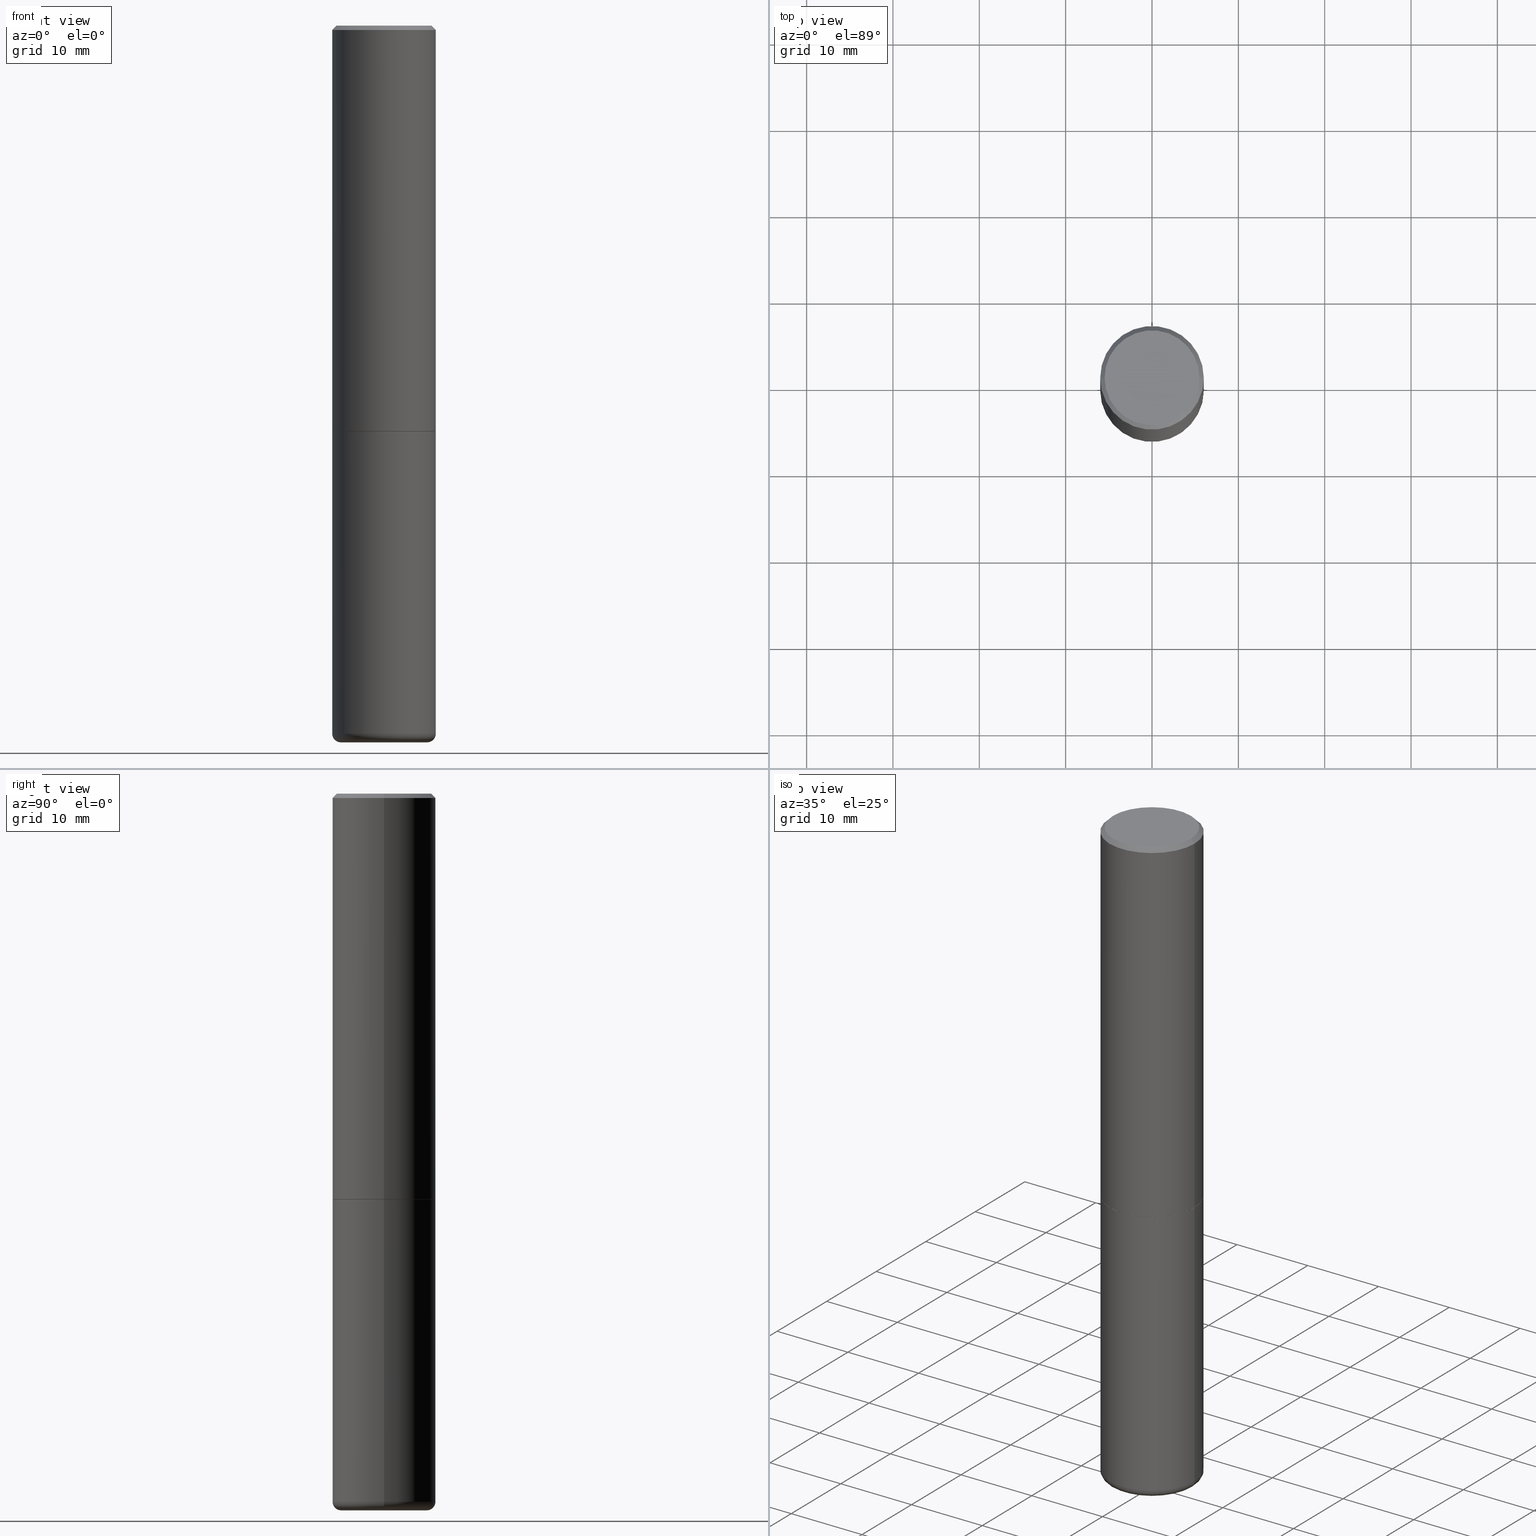
[diagram: canonical four-view strip — front | top / right | iso, engineering-drawing reading convention]
A machine part, canonical four-view strip (front | top / right | iso — engineering-drawing reading convention). The complete STEP part file that produces these views, byte-faithful:
ISO-10303-21;
HEADER;
FILE_DESCRIPTION (( 'STEP AP203' ),
    '1' );
FILE_NAME ('74452.STEP',
    '2024-03-06T15:15:29',
    ( '' ),
    ( '' ),
    'SwSTEP 2.0',
    'SolidWorks 2023',
    '' );
FILE_SCHEMA (( 'CONFIG_CONTROL_DESIGN' ));
ENDSEC;

DATA;
#1 = EDGE_CURVE ( 'NONE', #296, #202, #351, .T. ) ;
#2 = DATE_AND_TIME ( #129, #184 ) ;
#3 = DIRECTION ( 'NONE',  ( -2.445468806185136597E-29, 3.491481338843145583E-15, 1.000000000000000000 ) ) ;
#4 = DIRECTION ( 'NONE',  ( 1.000000000000000000, -6.982962677686266711E-15, 0.000000000000000000 ) ) ;
#5 = DIRECTION ( 'NONE',  ( 1.000000000000000000, -6.982962677686264344E-15, 0.000000000000000000 ) ) ;
#6 = PERSON_AND_ORGANIZATION ( #109, #352 ) ;
#7 = CARTESIAN_POINT ( 'NONE',  ( 7.894706947007477118E-29, -1.127154920618732880E-14, -3.228299999999999947 ) ) ;
#8 = AXIS2_PLACEMENT_3D ( 'NONE', #389, #161, #349 ) ;
#9 = CARTESIAN_POINT ( 'NONE',  ( 0.2362000000000002153, -8.106521372526011094E-15, -1.849400000000000155 ) ) ;
#10 = CARTESIAN_POINT ( 'NONE',  ( 0.2161999999999996980, -1.586759460484350410E-15, 2.475737244258346579E-16 ) ) ;
#11 = VERTEX_POINT ( 'NONE', #233 ) ;
#12 = ORIENTED_EDGE ( 'NONE', *, *, #1, .F. ) ;
#13 = CARTESIAN_POINT ( 'NONE',  ( -0.2362000000000002431, -1.585185665551328595E-15, -1.849400000000000155 ) ) ;
#14 = CARTESIAN_POINT ( 'NONE',  ( 4.525095478964977394E-29, -6.460637069395357576E-15, -1.850400000000000267 ) ) ;
#15 = DIRECTION ( 'NONE',  ( 7.105427357601001859E-15, 1.000000000000000000, -3.491481338843145583E-15 ) ) ;
#16 = DIRECTION ( 'NONE',  ( -6.982962677686266711E-15, -1.000000000000000000, 3.491481338843145583E-15 ) ) ;
#17 = LOCAL_TIME ( 10, 15, 29.00000000000000000, #318 ) ;
#18 = LINE ( 'NONE', #146, #416 ) ;
#19 = AXIS2_PLACEMENT_3D ( 'NONE', #323, #37, #294 ) ;
#20 = ORIENTED_EDGE ( 'NONE', *, *, #59, .T. ) ;
#21 = LINE ( 'NONE', #105, #282 ) ;
#22 = CARTESIAN_POINT ( 'NONE',  ( 7.894706947007477118E-29, -1.127154920618732880E-14, -3.228299999999999947 ) ) ;
#23 = ORIENTED_EDGE ( 'NONE', *, *, #1, .T. ) ;
#24 = ORIENTED_EDGE ( 'NONE', *, *, #396, .F. ) ;
#25 = ORIENTED_EDGE ( 'NONE', *, *, #208, .F. ) ;
#26 = ORIENTED_EDGE ( 'NONE', *, *, #42, .T. ) ;
#27 = ADVANCED_FACE ( 'NONE', ( #43 ), #238, .T. ) ;
#28 = LINE ( 'NONE', #155, #354 ) ;
#29 = AXIS2_PLACEMENT_3D ( 'NONE', #166, #328, #264 ) ;
#30 = APPROVAL_STATUS ( 'not_yet_approved' ) ;
#31 = DATE_AND_TIME ( #288, #362 ) ;
#32 = PRODUCT_RELATED_PRODUCT_CATEGORY ( 'detail', '', ( #251 ) ) ;
#33 = PERSON_AND_ORGANIZATION_ROLE ( 'creator' ) ;
#34 = APPLICATION_PROTOCOL_DEFINITION ( 'international standard', 'config_control_design', 1994, #217 ) ;
#35 = ADVANCED_BREP_SHAPE_REPRESENTATION ( '74452', ( #132, #410, #373 ), #157 ) ;
#36 = AXIS2_PLACEMENT_3D ( 'NONE', #40, #16, #306 ) ;
#37 = DIRECTION ( 'NONE',  ( -2.445468806185136597E-29, 3.491481338843145583E-15, 1.000000000000000000 ) ) ;
#38 = DIRECTION ( 'NONE',  ( -1.000000000000000000, 6.982962677686265922E-15, -4.876176775795935793E-29 ) ) ;
#39 = EDGE_LOOP ( 'NONE', ( #12, #78, #401, #326 ) ) ;
#40 = CARTESIAN_POINT ( 'NONE',  ( 0.1968000000000000027, -1.264579626115598374E-14, -3.228299999999999947 ) ) ;
#41 = CARTESIAN_POINT ( 'NONE',  ( 7.894706947007477118E-29, -1.127154920618732880E-14, -3.228299999999999947 ) ) ;
#42 = EDGE_CURVE ( 'NONE', #333, #276, #176, .T. ) ;
#43 = FACE_OUTER_BOUND ( 'NONE', #262, .T. ) ;
#44 = DIRECTION ( 'NONE',  ( 1.000000000000000000, -6.982962677686265922E-15, 4.876176775795935793E-29 ) ) ;
#45 = CARTESIAN_POINT ( 'NONE',  ( 0.000000000000000000, 0.000000000000000000, 0.000000000000000000 ) ) ;
#46 = CC_DESIGN_PERSON_AND_ORGANIZATION_ASSIGNMENT ( #64, #190, ( #251 ) ) ;
#47 = CARTESIAN_POINT ( 'NONE',  ( 4.525095478964977394E-29, -6.460637069395357576E-15, -1.850400000000000267 ) ) ;
#48 = CIRCLE ( 'NONE', #193, 0.2361999999999999933 ) ;
#49 = DIRECTION ( 'NONE',  ( -1.000000000000000000, 6.982962677686266711E-15, 0.000000000000000000 ) ) ;
#50 = AXIS2_PLACEMENT_3D ( 'NONE', #231, #361, #79 ) ;
#51 = ORIENTED_EDGE ( 'NONE', *, *, #97, .T. ) ;
#52 = FACE_OUTER_BOUND ( 'NONE', #299, .T. ) ;
#53 = DIRECTION ( 'NONE',  ( -2.445468806185136597E-29, 3.491481338843145583E-15, 1.000000000000000000 ) ) ;
#54 = VERTEX_POINT ( 'NONE', #199 ) ;
#55 = ADVANCED_FACE ( 'NONE', ( #332 ), #408, .T. ) ;
#56 = ORIENTED_EDGE ( 'NONE', *, *, #158, .T. ) ;
#57 = CIRCLE ( 'NONE', #36, 0.03940000000000005997 ) ;
#58 = VECTOR ( 'NONE', #340, 39.37007874015748143 ) ;
#59 = EDGE_CURVE ( 'NONE', #170, #118, #371, .T. ) ;
#60 = CC_DESIGN_APPROVAL ( #355, ( #239 ) ) ;
#61 = ADVANCED_FACE ( 'NONE', ( #205 ), #336, .F. ) ;
#62 = PERSON_AND_ORGANIZATION_ROLE ( 'classification_officer' ) ;
#63 = CARTESIAN_POINT ( 'NONE',  ( 4.890937612370285420E-31, -6.982962677686308865E-17, -0.02000000000000005246 ) ) ;
#64 = PERSON_AND_ORGANIZATION ( #109, #352 ) ;
#65 = APPROVAL_STATUS ( 'not_yet_approved' ) ;
#66 = EDGE_CURVE ( 'NONE', #181, #333, #117, .T. ) ;
#67 = CARTESIAN_POINT ( 'NONE',  ( -0.2351999999999999924, -4.784142100539378999E-15, -1.850400000000000267 ) ) ;
#68 = CARTESIAN_POINT ( 'NONE',  ( -0.2351999999999999924, -4.789440554887602190E-15, -1.850400000000000267 ) ) ;
#69 = AXIS2_PLACEMENT_3D ( 'NONE', #330, #70, #203 ) ;
#70 = DIRECTION ( 'NONE',  ( -2.445468806185136597E-29, 3.491481338843145583E-15, 1.000000000000000000 ) ) ;
#71 = AXIS2_PLACEMENT_3D ( 'NONE', #41, #198, #106 ) ;
#72 = DIRECTION ( 'NONE',  ( -2.445468806185136597E-29, 3.491481338843145583E-15, 1.000000000000000000 ) ) ;
#73 = DIRECTION ( 'NONE',  ( -1.000000000000000000, 6.982962677686265922E-15, -4.876176775795935793E-29 ) ) ;
#74 = DIRECTION ( 'NONE',  ( 1.000000000000000000, -6.982962677686266711E-15, 4.876176775795935793E-29 ) ) ;
#75 = EDGE_CURVE ( 'NONE', #276, #333, #364, .T. ) ;
#76 = APPROVAL ( #30, 'UNSPECIFIED' ) ;
#77 = VERTEX_POINT ( 'NONE', #156 ) ;
#78 = ORIENTED_EDGE ( 'NONE', *, *, #89, .T. ) ;
#79 = DIRECTION ( 'NONE',  ( 1.000000000000000000, -6.982962677686270655E-15, 4.883557194083114583E-29 ) ) ;
#80 = FACE_OUTER_BOUND ( 'NONE', #113, .T. ) ;
#81 = DIRECTION ( 'NONE',  ( 0.7071067811865469066, -7.319954787623254468E-15, -0.7071067811865481278 ) ) ;
#82 = ORIENTED_EDGE ( 'NONE', *, *, #104, .F. ) ;
#83 = CONICAL_SURFACE ( 'NONE', #221, 0.2351999999999999924, 0.7853981633975165577 ) ;
#84 = DIRECTION ( 'NONE',  ( 1.000000000000000000, -6.982962677686266711E-15, 0.000000000000000000 ) ) ;
#85 = AXIS2_PLACEMENT_3D ( 'NONE', #107, #211, #152 ) ;
#86 = ORIENTED_EDGE ( 'NONE', *, *, #195, .T. ) ;
#87 = ORIENTED_EDGE ( 'NONE', *, *, #246, .T. ) ;
#88 = ORIENTED_EDGE ( 'NONE', *, *, #75, .F. ) ;
#89 = EDGE_CURVE ( 'NONE', #296, #341, #98, .T. ) ;
#90 = AXIS2_PLACEMENT_3D ( 'NONE', #260, #272, #143 ) ;
#91 = PRODUCT_DEFINITION_SHAPE ( 'NONE', 'NONE',  #239 ) ;
#92 = CLOSED_SHELL ( 'NONE', ( #388, #127, #138, #165, #55, #360, #125, #61 ) ) ;
#93 = EDGE_CURVE ( 'NONE', #276, #118, #387, .T. ) ;
#94 = PERSON_AND_ORGANIZATION ( #109, #352 ) ;
#95 = VECTOR ( 'NONE', #228, 39.37007874015748143 ) ;
#96 = CONICAL_SURFACE ( 'NONE', #90, 0.2361999999999999655, 0.7853981633974473908 ) ;
#97 = EDGE_CURVE ( 'NONE', #141, #170, #281, .T. ) ;
#98 = CIRCLE ( 'NONE', #126, 0.1968000000000000027 ) ;
#99 = CIRCLE ( 'NONE', #69, 0.2161999999999996980 ) ;
#100 = CALENDAR_DATE ( 2024, 6, 3 ) ;
#101 = ORIENTED_EDGE ( 'NONE', *, *, #97, .F. ) ;
#102 = CARTESIAN_POINT ( 'NONE',  ( 0.1968000000000000027, -1.278336062590640454E-14, -3.267700000000000049 ) ) ;
#103 = CYLINDRICAL_SURFACE ( 'NONE', #380, 0.2362000000000000766 ) ;
#104 = EDGE_CURVE ( 'NONE', #54, #118, #160, .T. ) ;
#105 = CARTESIAN_POINT ( 'NONE',  ( 0.2351999999999999924, -8.103029891187166509E-15, -1.850400000000000267 ) ) ;
#106 = DIRECTION ( 'NONE',  ( 1.000000000000000000, -6.982962677686265133E-15, 0.000000000000000000 ) ) ;
#107 = CARTESIAN_POINT ( 'NONE',  ( 4.522650010158792351E-29, -6.457145588056513780E-15, -1.849400000000000155 ) ) ;
#108 = ADVANCED_FACE ( 'NONE', ( #134 ), #357, .T. ) ;
#109 = PERSON ( 'UNSPECIFIED', 'UNSPECIFIED', 'UNSPECIFIED', ('UNSPECIFIED'), ('UNSPECIFIED'), ('UNSPECIFIED') ) ;
#110 = CC_DESIGN_DATE_AND_TIME_ASSIGNMENT ( #2, #284, ( #344 ) ) ;
#111 = LINE ( 'NONE', #235, #128 ) ;
#112 = EDGE_LOOP ( 'NONE', ( #243, #26, #278, #82 ) ) ;
#113 = EDGE_LOOP ( 'NONE', ( #167, #144 ) ) ;
#114 = FACE_OUTER_BOUND ( 'NONE', #230, .T. ) ;
#115 = DIRECTION ( 'NONE',  ( -1.000000000000000000, 7.105427357601014480E-15, 0.000000000000000000 ) ) ;
#116 = FACE_OUTER_BOUND ( 'NONE', #407, .T. ) ;
#117 = LINE ( 'NONE', #68, #58 ) ;
#118 = VERTEX_POINT ( 'NONE', #395 ) ;
#119 = APPROVAL_PERSON_ORGANIZATION ( #189, #180, #290 ) ;
#120 = CARTESIAN_POINT ( 'NONE',  ( 7.991058417971171713E-29, -1.140911357093774644E-14, -3.267700000000000049 ) ) ;
#121 = ORIENTED_EDGE ( 'NONE', *, *, #379, .T. ) ;
#122 = CC_DESIGN_PERSON_AND_ORGANIZATION_ASSIGNMENT ( #250, #287, ( #384 ) ) ;
#123 = DIRECTION ( 'NONE',  ( -2.445468806185136597E-29, 3.491481338843145583E-15, 1.000000000000000000 ) ) ;
#124 = EDGE_CURVE ( 'NONE', #369, #77, #248, .T. ) ;
#125 = ADVANCED_FACE ( 'NONE', ( #80 ), #363, .F. ) ;
#126 = AXIS2_PLACEMENT_3D ( 'NONE', #120, #123, #315 ) ;
#127 = ADVANCED_FACE ( 'NONE', ( #116 ), #103, .T. ) ;
#128 = VECTOR ( 'NONE', #206, 39.37007874015748143 ) ;
#129 = CALENDAR_DATE ( 2024, 6, 3 ) ;
#130 = AXIS2_PLACEMENT_3D ( 'NONE', #204, #242, #49 ) ;
#131 = PERSON_AND_ORGANIZATION_ROLE ( 'creator' ) ;
#132 = MANIFOLD_SOLID_BREP ( 'Body-Move/Copy2[1]', #375 ) ;
#133 = CALENDAR_DATE ( 2024, 6, 3 ) ;
#134 = FACE_OUTER_BOUND ( 'NONE', #368, .T. ) ;
#135 = CIRCLE ( 'NONE', #277, 0.1968000000000000027 ) ;
#136 = VECTOR ( 'NONE', #418, 39.37007874015748143 ) ;
#137 = DIRECTION ( 'NONE',  ( 1.000000000000000000, -6.982962677686270655E-15, 4.883557194083114583E-29 ) ) ;
#138 = ADVANCED_FACE ( 'NONE', ( #114 ), #412, .T. ) ;
#139 = PLANE ( 'NONE',  #385 ) ;
#140 = ORIENTED_EDGE ( 'NONE', *, *, #59, .F. ) ;
#141 = VERTEX_POINT ( 'NONE', #302 ) ;
#142 = DIRECTION ( 'NONE',  ( -2.445468806185136597E-29, 3.491481338843145583E-15, 1.000000000000000000 ) ) ;
#143 = DIRECTION ( 'NONE',  ( -1.000000000000000000, 6.982962677686266711E-15, 0.000000000000000000 ) ) ;
#144 = ORIENTED_EDGE ( 'NONE', *, *, #216, .F. ) ;
#145 = DIRECTION ( 'NONE',  ( -2.445468806185136597E-29, 3.491481338843145583E-15, 1.000000000000000000 ) ) ;
#146 = CARTESIAN_POINT ( 'NONE',  ( -0.2361999999999999655, 1.579546157692632833E-15, -0.02000000000000005246 ) ) ;
#147 = DIRECTION ( 'NONE',  ( -2.445468806185136597E-29, 3.491481338843145583E-15, 1.000000000000000000 ) ) ;
#148 = DIRECTION ( 'NONE',  ( -2.445468806185136597E-29, 3.491481338843145583E-15, 1.000000000000000000 ) ) ;
#149 = ADVANCED_FACE ( 'NONE', ( #335 ), #286, .T. ) ;
#150 = DIRECTION ( 'NONE',  ( 2.438088387897960049E-29, -3.491481338843145188E-15, -1.000000000000000000 ) ) ;
#151 = ORIENTED_EDGE ( 'NONE', *, *, #75, .T. ) ;
#152 = DIRECTION ( 'NONE',  ( 1.000000000000000000, -6.982962677686266711E-15, 0.000000000000000000 ) ) ;
#153 = ORIENTED_EDGE ( 'NONE', *, *, #216, .T. ) ;
#154 = ORIENTED_EDGE ( 'NONE', *, *, #396, .T. ) ;
#155 = CARTESIAN_POINT ( 'NONE',  ( -0.2361999999999999933, 1.678301941865356591E-15, -1.161852468318208757E-29 ) ) ;
#156 = CARTESIAN_POINT ( 'NONE',  ( 0.2361999999999999933, -8.110012853864854101E-15, -1.850400000000000267 ) ) ;
#157 =( GEOMETRIC_REPRESENTATION_CONTEXT ( 3 ) GLOBAL_UNCERTAINTY_ASSIGNED_CONTEXT ( ( #350 ) ) GLOBAL_UNIT_ASSIGNED_CONTEXT ( ( #241, #219, #343 ) ) REPRESENTATION_CONTEXT ( 'NONE', 'WORKASPACE' ) );
#158 = EDGE_CURVE ( 'NONE', #11, #202, #201, .T. ) ;
#159 = APPROVAL_DATE_TIME ( #322, #180 ) ;
#160 = CIRCLE ( 'NONE', #186, 0.2361999999999999655 ) ;
#161 = DIRECTION ( 'NONE',  ( -2.445468806185136597E-29, 3.491481338843145583E-15, 1.000000000000000000 ) ) ;
#162 = COORDINATED_UNIVERSAL_TIME_OFFSET ( 5, 0, .BEHIND. ) ;
#163 = DESIGN_CONTEXT ( 'detailed design', #217, 'design' ) ;
#164 = DATE_AND_TIME ( #100, #337 ) ;
#165 = ADVANCED_FACE ( 'NONE', ( #358 ), #96, .T. ) ;
#166 = CARTESIAN_POINT ( 'NONE',  ( 4.525095478964977394E-29, -6.460637069395357576E-15, -1.850400000000000267 ) ) ;
#167 = ORIENTED_EDGE ( 'NONE', *, *, #379, .F. ) ;
#168 = CARTESIAN_POINT ( 'NONE',  ( 4.525095478964977394E-29, -6.460637069395357576E-15, -1.850400000000000267 ) ) ;
#169 = DIRECTION ( 'NONE',  ( 1.000000000000000000, -6.982962677686269077E-15, 0.000000000000000000 ) ) ;
#170 = VERTEX_POINT ( 'NONE', #10 ) ;
#171 = FACE_OUTER_BOUND ( 'NONE', #393, .T. ) ;
#172 = DIRECTION ( 'NONE',  ( 1.000000000000000000, -6.982962677686265133E-15, 0.000000000000000000 ) ) ;
#173 = EDGE_LOOP ( 'NONE', ( #275, #23, #310, #329 ) ) ;
#174 = AXIS2_PLACEMENT_3D ( 'NONE', #261, #331, #169 ) ;
#175 = CARTESIAN_POINT ( 'NONE',  ( 0.2361999999999999933, -1.649375784469496131E-15, 1.151752954443000088E-29 ) ) ;
#176 = CIRCLE ( 'NONE', #85, 0.2362000000000002153 ) ;
#177 = DIRECTION ( 'NONE',  ( -2.445468806185136597E-29, 3.491481338843145583E-15, 1.000000000000000000 ) ) ;
#178 = CARTESIAN_POINT ( 'NONE',  ( 1.509716530915768548E-15, 0.2161999999999996980, -6.310714032449751543E-16 ) ) ;
#179 = ORIENTED_EDGE ( 'NONE', *, *, #254, .T. ) ;
#180 = APPROVAL ( #224, 'UNSPECIFIED' ) ;
#181 = VERTEX_POINT ( 'NONE', #67 ) ;
#182 = ADVANCED_FACE ( 'NONE', ( #52 ), #139, .F. ) ;
#183 = ORIENTED_EDGE ( 'NONE', *, *, #192, .F. ) ;
#184 = LOCAL_TIME ( 10, 15, 29.00000000000000000, #162 ) ;
#185 = APPROVAL_PERSON_ORGANIZATION ( #6, #355, #319 ) ;
#186 = AXIS2_PLACEMENT_3D ( 'NONE', #63, #3, #4 ) ;
#187 = PERSON_AND_ORGANIZATION ( #109, #352 ) ;
#188 = APPLICATION_CONTEXT ( 'configuration controlled 3d designs of mechanical parts and assemblies' ) ;
#189 = PERSON_AND_ORGANIZATION ( #109, #352 ) ;
#190 = PERSON_AND_ORGANIZATION_ROLE ( 'design_owner' ) ;
#191 = LOCAL_TIME ( 10, 15, 29.00000000000000000, #348 ) ;
#192 = EDGE_CURVE ( 'NONE', #77, #369, #48, .T. ) ;
#193 = AXIS2_PLACEMENT_3D ( 'NONE', #298, #405, #402 ) ;
#194 = SECURITY_CLASSIFICATION_LEVEL ( 'unclassified' ) ;
#195 = EDGE_CURVE ( 'NONE', #202, #11, #253, .T. ) ;
#196 = DIRECTION ( 'NONE',  ( -2.445468806185136597E-29, 3.491481338843145583E-15, 1.000000000000000000 ) ) ;
#197 = CALENDAR_DATE ( 2024, 6, 3 ) ;
#198 = DIRECTION ( 'NONE',  ( -2.445468806185136597E-29, 3.491481338843145583E-15, 1.000000000000000000 ) ) ;
#199 = CARTESIAN_POINT ( 'NONE',  ( -0.2361999999999999655, 1.579546157692632833E-15, -0.02000000000000005246 ) ) ;
#200 = CC_DESIGN_APPROVAL ( #76, ( #344 ) ) ;
#201 = CIRCLE ( 'NONE', #305, 0.2361999999999999933 ) ;
#202 = VERTEX_POINT ( 'NONE', #232 ) ;
#203 = DIRECTION ( 'NONE',  ( 1.000000000000000000, -6.982962677686266711E-15, 4.881916136609868741E-29 ) ) ;
#204 = CARTESIAN_POINT ( 'NONE',  ( 4.890937612370285420E-31, -6.982962677686308865E-17, -0.02000000000000005246 ) ) ;
#205 = FACE_OUTER_BOUND ( 'NONE', #265, .T. ) ;
#206 = DIRECTION ( 'NONE',  ( -2.445468806185136877E-29, 3.491481338843145188E-15, 1.000000000000000000 ) ) ;
#207 = DIRECTION ( 'NONE',  ( 2.438088387897960049E-29, -3.491481338843145188E-15, -1.000000000000000000 ) ) ;
#208 = EDGE_CURVE ( 'NONE', #118, #54, #392, .T. ) ;
#209 = ORIENTED_EDGE ( 'NONE', *, *, #295, .F. ) ;
#210 = CARTESIAN_POINT ( 'NONE',  ( 4.525095478964977394E-29, -6.460637069395357576E-15, -1.850400000000000267 ) ) ;
#211 = DIRECTION ( 'NONE',  ( -2.445468806185136597E-29, 3.491481338843145583E-15, 1.000000000000000000 ) ) ;
#212 = ADVANCED_FACE ( 'NONE', ( #292 ), #237, .T. ) ;
#213 = DIRECTION ( 'NONE',  ( -2.438088387897960049E-29, 3.491481338843145188E-15, 1.000000000000000000 ) ) ;
#214 = CARTESIAN_POINT ( 'NONE',  ( 7.991058417971171713E-29, -1.140911357093774644E-14, -3.267700000000000049 ) ) ;
#215 = EDGE_LOOP ( 'NONE', ( #234, #86, #154, #236 ) ) ;
#216 = EDGE_CURVE ( 'NONE', #181, #398, #249, .T. ) ;
#217 = APPLICATION_CONTEXT ( 'configuration controlled 3d designs of mechanical parts and assemblies' ) ;
#218 = EDGE_LOOP ( 'NONE', ( #121, #342, #88, #403 ) ) ;
#219 =( NAMED_UNIT ( * ) PLANE_ANGLE_UNIT ( ) SI_UNIT ( $, .RADIAN. ) );
#220 = CC_DESIGN_DATE_AND_TIME_ASSIGNMENT ( #164, #317, ( #239 ) ) ;
#221 = AXIS2_PLACEMENT_3D ( 'NONE', #168, #145, #269 ) ;
#222 = MECHANICAL_CONTEXT ( 'NONE', #188, 'mechanical' ) ;
#223 = DIRECTION ( 'NONE',  ( 0.000000000000000000, 0.000000000000000000, 1.000000000000000000 ) ) ;
#224 = APPROVAL_STATUS ( 'not_yet_approved' ) ;
#225 = AXIS2_PLACEMENT_3D ( 'NONE', #406, #15, #115 ) ;
#226 = AXIS2_PLACEMENT_3D ( 'NONE', #7, #177, #137 ) ;
#227 = CARTESIAN_POINT ( 'NONE',  ( 0.000000000000000000, 0.000000000000000000, 0.000000000000000000 ) ) ;
#228 = DIRECTION ( 'NONE',  ( -2.445468806185136877E-29, 3.491481338843145188E-15, 1.000000000000000000 ) ) ;
#229 = DIRECTION ( 'NONE',  ( -2.445468806185136597E-29, 3.491481338843145583E-15, 1.000000000000000000 ) ) ;
#230 = EDGE_LOOP ( 'NONE', ( #209, #20, #312, #409 ) ) ;
#231 = CARTESIAN_POINT ( 'NONE',  ( 7.894706947007477118E-29, -1.127154920618732880E-14, -3.228299999999999947 ) ) ;
#232 = CARTESIAN_POINT ( 'NONE',  ( -0.2362000000000000210, -9.593247264321970832E-15, -3.228299999999999947 ) ) ;
#233 = CARTESIAN_POINT ( 'NONE',  ( 0.2362000000000000210, -1.292092499065682375E-14, -3.228299999999999947 ) ) ;
#234 = ORIENTED_EDGE ( 'NONE', *, *, #268, .F. ) ;
#235 = CARTESIAN_POINT ( 'NONE',  ( -0.2362000000000000766, 1.678301941865357183E-15, -1.161852468318209177E-29 ) ) ;
#236 = ORIENTED_EDGE ( 'NONE', *, *, #124, .F. ) ;
#237 = CYLINDRICAL_SURFACE ( 'NONE', #19, 0.2361999999999999933 ) ;
#238 = PLANE ( 'NONE',  #324 ) ;
#239 = PRODUCT_DEFINITION ( 'UNKNOWN', '', #384, #163 ) ;
#240 = ORIENTED_EDGE ( 'NONE', *, *, #42, .F. ) ;
#241 =( CONVERSION_BASED_UNIT ( 'INCH', #247 ) LENGTH_UNIT ( ) NAMED_UNIT ( #347 ) );
#242 = DIRECTION ( 'NONE',  ( 2.445468806185136597E-29, -3.491481338843145583E-15, -1.000000000000000000 ) ) ;
#243 = ORIENTED_EDGE ( 'NONE', *, *, #246, .F. ) ;
#244 = ORIENTED_EDGE ( 'NONE', *, *, #295, .T. ) ;
#245 = ORIENTED_EDGE ( 'NONE', *, *, #192, .T. ) ;
#246 = EDGE_CURVE ( 'NONE', #333, #54, #111, .T. ) ;
#247 = LENGTH_MEASURE_WITH_UNIT ( LENGTH_MEASURE( 0.02539999999999999897 ), #381 );
#248 = CIRCLE ( 'NONE', #174, 0.2361999999999999933 ) ;
#249 = CIRCLE ( 'NONE', #29, 0.2351999999999999924 ) ;
#250 = PERSON_AND_ORGANIZATION ( #109, #352 ) ;
#251 = PRODUCT ( '74452', '74452', '', ( #222 ) ) ;
#252 = APPROVAL_ROLE ( '' ) ;
#253 = CIRCLE ( 'NONE', #71, 0.2361999999999999933 ) ;
#254 = EDGE_CURVE ( 'NONE', #141, #54, #18, .T. ) ;
#255 = SHAPE_DEFINITION_REPRESENTATION ( #91, #35 ) ;
#256 = DIRECTION ( 'NONE',  ( 1.000000000000000000, 0.000000000000000000, 0.000000000000000000 ) ) ;
#257 = CC_DESIGN_APPROVAL ( #180, ( #384 ) ) ;
#258 = CARTESIAN_POINT ( 'NONE',  ( 0.000000000000000000, 0.000000000000000000, 0.000000000000000000 ) ) ;
#259 = AXIS2_PLACEMENT_3D ( 'NONE', #339, #213, #44 ) ;
#260 = CARTESIAN_POINT ( 'NONE',  ( 4.890937612370285420E-31, -6.982962677686308865E-17, -0.02000000000000005246 ) ) ;
#261 = CARTESIAN_POINT ( 'NONE',  ( 4.525095478964977394E-29, -6.460637069395357576E-15, -1.850400000000000267 ) ) ;
#262 = EDGE_LOOP ( 'NONE', ( #366, #365 ) ) ;
#263 = DIRECTION ( 'NONE',  ( 1.000000000000000000, -6.982962677686264344E-15, 0.000000000000000000 ) ) ;
#264 = DIRECTION ( 'NONE',  ( 1.000000000000000000, -6.982962677686264344E-15, 0.000000000000000000 ) ) ;
#265 = EDGE_LOOP ( 'NONE', ( #51, #244 ) ) ;
#266 = AXIS2_PLACEMENT_3D ( 'NONE', #359, #53, #325 ) ;
#267 = ORIENTED_EDGE ( 'NONE', *, *, #104, .T. ) ;
#268 = EDGE_CURVE ( 'NONE', #202, #369, #28, .T. ) ;
#269 = DIRECTION ( 'NONE',  ( 1.000000000000000000, -6.982962677686264344E-15, 0.000000000000000000 ) ) ;
#270 = DIRECTION ( 'NONE',  ( 1.000000000000000000, -6.982962677686266711E-15, 4.876176775795935793E-29 ) ) ;
#271 = CARTESIAN_POINT ( 'NONE',  ( 0.2351999999999999924, -8.103029891187166509E-15, -1.850400000000000267 ) ) ;
#272 = DIRECTION ( 'NONE',  ( 2.445468806185136597E-29, -3.491481338843145583E-15, -1.000000000000000000 ) ) ;
#273 = ADVANCED_FACE ( 'NONE', ( #301 ), #414, .T. ) ;
#274 = CARTESIAN_POINT ( 'NONE',  ( 0.2361999999999999655, -1.690279253850498574E-15, -0.02000000000000005246 ) ) ;
#275 = ORIENTED_EDGE ( 'NONE', *, *, #399, .T. ) ;
#276 = VERTEX_POINT ( 'NONE', #9 ) ;
#277 = AXIS2_PLACEMENT_3D ( 'NONE', #404, #196, #321 ) ;
#278 = ORIENTED_EDGE ( 'NONE', *, *, #93, .T. ) ;
#279 = AXIS2_PLACEMENT_3D ( 'NONE', #258, #370, #307 ) ;
#280 = ORIENTED_EDGE ( 'NONE', *, *, #66, .F. ) ;
#281 = CIRCLE ( 'NONE', #8, 0.2161999999999996980 ) ;
#282 = VECTOR ( 'NONE', #356, 39.37007874015748143 ) ;
#283 = CC_DESIGN_PERSON_AND_ORGANIZATION_ASSIGNMENT ( #94, #33, ( #239 ) ) ;
#284 = DATE_TIME_ROLE ( 'classification_date' ) ;
#285 = CIRCLE ( 'NONE', #390, 0.2351999999999999924 ) ;
#286 = TOROIDAL_SURFACE ( 'NONE', #226, 0.1968000000000000027, 0.03940000000000005997 ) ;
#287 = PERSON_AND_ORGANIZATION_ROLE ( 'design_supplier' ) ;
#288 = CALENDAR_DATE ( 2024, 6, 3 ) ;
#289 = CARTESIAN_POINT ( 'NONE',  ( 0.2362000000000000766, -1.649375784469496722E-15, 1.151752954443000368E-29 ) ) ;
#290 = APPROVAL_ROLE ( '' ) ;
#291 = CC_DESIGN_SECURITY_CLASSIFICATION ( #344, ( #384 ) ) ;
#292 = FACE_OUTER_BOUND ( 'NONE', #215, .T. ) ;
#293 = EDGE_CURVE ( 'NONE', #398, #276, #21, .T. ) ;
#294 = DIRECTION ( 'NONE',  ( 1.000000000000000000, -6.982962677686266711E-15, 4.876176775795936353E-29 ) ) ;
#295 = EDGE_CURVE ( 'NONE', #170, #141, #99, .T. ) ;
#296 = VERTEX_POINT ( 'NONE', #327 ) ;
#297 = CARTESIAN_POINT ( 'NONE',  ( -0.2361999999999999933, -7.187791195925986796E-15, -1.850400000000000267 ) ) ;
#298 = CARTESIAN_POINT ( 'NONE',  ( 4.525095478964977394E-29, -6.460637069395357576E-15, -1.850400000000000267 ) ) ;
#299 = EDGE_LOOP ( 'NONE', ( #245, #304 ) ) ;
#300 = EDGE_CURVE ( 'NONE', #341, #11, #57, .T. ) ;
#301 = FACE_OUTER_BOUND ( 'NONE', #39, .T. ) ;
#302 = CARTESIAN_POINT ( 'NONE',  ( -0.2161999999999996980, 1.544631344304201183E-15, 2.475737244258131614E-16 ) ) ;
#303 = AXIS2_PLACEMENT_3D ( 'NONE', #45, #147, #270 ) ;
#304 = ORIENTED_EDGE ( 'NONE', *, *, #124, .T. ) ;
#305 = AXIS2_PLACEMENT_3D ( 'NONE', #22, #397, #172 ) ;
#306 = DIRECTION ( 'NONE',  ( 1.000000000000000000, -6.982962677686267499E-15, 0.000000000000000000 ) ) ;
#307 = DIRECTION ( 'NONE',  ( 1.000000000000000000, -6.982962677686266711E-15, 4.876176775795936353E-29 ) ) ;
#308 = DIRECTION ( 'NONE',  ( 2.438088387897960049E-29, -3.491481338843145188E-15, -1.000000000000000000 ) ) ;
#309 = ORIENTED_EDGE ( 'NONE', *, *, #93, .F. ) ;
#310 = ORIENTED_EDGE ( 'NONE', *, *, #158, .F. ) ;
#311 = AXIS2_PLACEMENT_3D ( 'NONE', #47, #148, #5 ) ;
#312 = ORIENTED_EDGE ( 'NONE', *, *, #208, .T. ) ;
#313 = AXIS2_PLACEMENT_3D ( 'NONE', #372, #72, #84 ) ;
#314 = CC_DESIGN_PERSON_AND_ORGANIZATION_ASSIGNMENT ( #346, #62, ( #344 ) ) ;
#315 = DIRECTION ( 'NONE',  ( 1.000000000000000000, -6.982962677686271444E-15, 0.000000000000000000 ) ) ;
#316 = CONICAL_SURFACE ( 'NONE', #311, 0.2351999999999999924, 0.7853981633975165577 ) ;
#317 = DATE_TIME_ROLE ( 'creation_date' ) ;
#318 = COORDINATED_UNIVERSAL_TIME_OFFSET ( 5, 0, .BEHIND. ) ;
#319 = APPROVAL_ROLE ( '' ) ;
#320 = COORDINATED_UNIVERSAL_TIME_OFFSET ( 5, 0, .BEHIND. ) ;
#321 = DIRECTION ( 'NONE',  ( 1.000000000000000000, -6.982962677686271444E-15, 0.000000000000000000 ) ) ;
#322 = DATE_AND_TIME ( #197, #17 ) ;
#323 = CARTESIAN_POINT ( 'NONE',  ( 0.000000000000000000, 0.000000000000000000, 0.000000000000000000 ) ) ;
#324 = AXIS2_PLACEMENT_3D ( 'NONE', #214, #207, #73 ) ;
#325 = DIRECTION ( 'NONE',  ( 1.000000000000000000, -6.982962677686266711E-15, 0.000000000000000000 ) ) ;
#326 = ORIENTED_EDGE ( 'NONE', *, *, #195, .F. ) ;
#327 = CARTESIAN_POINT ( 'NONE',  ( -0.1968000000000000027, -9.802006365641922115E-15, -3.267700000000000049 ) ) ;
#328 = DIRECTION ( 'NONE',  ( -2.445468806185136597E-29, 3.491481338843145583E-15, 1.000000000000000000 ) ) ;
#329 = ORIENTED_EDGE ( 'NONE', *, *, #300, .F. ) ;
#330 = CARTESIAN_POINT ( 'NONE',  ( -6.054338203144274603E-45, 8.643990388206593487E-31, 2.475737244258238603E-16 ) ) ;
#331 = DIRECTION ( 'NONE',  ( -2.445468806185136597E-29, 3.491481338843145583E-15, 1.000000000000000000 ) ) ;
#332 = FACE_OUTER_BOUND ( 'NONE', #112, .T. ) ;
#333 = VERTEX_POINT ( 'NONE', #13 ) ;
#334 = FACE_OUTER_BOUND ( 'NONE', #218, .T. ) ;
#335 = FACE_OUTER_BOUND ( 'NONE', #173, .T. ) ;
#336 = PLANE ( 'NONE',  #338 ) ;
#337 = LOCAL_TIME ( 10, 15, 29.00000000000000000, #320 ) ;
#338 = AXIS2_PLACEMENT_3D ( 'NONE', #178, #308, #38 ) ;
#339 = CARTESIAN_POINT ( 'NONE',  ( 4.525095478964977394E-29, -6.460637069395357576E-15, -1.850400000000000267 ) ) ;
#340 = DIRECTION ( 'NONE',  ( -0.7071067811865957564, 7.493145998870527710E-15, 0.7071067811864992780 ) ) ;
#341 = VERTEX_POINT ( 'NONE', #102 ) ;
#342 = ORIENTED_EDGE ( 'NONE', *, *, #66, .T. ) ;
#343 =( NAMED_UNIT ( * ) SI_UNIT ( $, .STERADIAN. ) SOLID_ANGLE_UNIT ( ) );
#344 = SECURITY_CLASSIFICATION ( '', '', #194 ) ;
#345 = VECTOR ( 'NONE', #81, 39.37007874015748143 ) ;
#346 = PERSON_AND_ORGANIZATION ( #109, #352 ) ;
#347 = DIMENSIONAL_EXPONENTS ( 1.000000000000000000, 0.000000000000000000, 0.000000000000000000, 0.000000000000000000, 0.000000000000000000, 0.000000000000000000, 0.000000000000000000 ) ;
#348 = COORDINATED_UNIVERSAL_TIME_OFFSET ( 5, 0, .BEHIND. ) ;
#349 = DIRECTION ( 'NONE',  ( 1.000000000000000000, -6.982962677686266711E-15, 4.881916136609868741E-29 ) ) ;
#350 = UNCERTAINTY_MEASURE_WITH_UNIT (LENGTH_MEASURE( 1.000000000000000082E-05 ), #241, 'distance_accuracy_value', 'NONE');
#351 = CIRCLE ( 'NONE', #225, 0.03940000000000005997 ) ;
#352 = ORGANIZATION ( 'UNSPECIFIED', 'UNSPECIFIED', '' ) ;
#353 = PERSON_AND_ORGANIZATION ( #109, #352 ) ;
#354 = VECTOR ( 'NONE', #382, 39.37007874015748143 ) ;
#355 = APPROVAL ( #65, 'UNSPECIFIED' ) ;
#356 = DIRECTION ( 'NONE',  ( 0.7071067811865957564, -2.468850131082761932E-15, 0.7071067811864992780 ) ) ;
#357 = CYLINDRICAL_SURFACE ( 'NONE', #279, 0.2361999999999999933 ) ;
#358 = FACE_OUTER_BOUND ( 'NONE', #376, .T. ) ;
#359 = CARTESIAN_POINT ( 'NONE',  ( 4.522650010158792351E-29, -6.457145588056513780E-15, -1.849400000000000155 ) ) ;
#360 = ADVANCED_FACE ( 'NONE', ( #171 ), #83, .T. ) ;
#361 = DIRECTION ( 'NONE',  ( -2.445468806185136597E-29, 3.491481338843145583E-15, 1.000000000000000000 ) ) ;
#362 = LOCAL_TIME ( 10, 15, 29.00000000000000000, #386 ) ;
#363 = PLANE ( 'NONE',  #259 ) ;
#364 = CIRCLE ( 'NONE', #266, 0.2362000000000002153 ) ;
#365 = ORIENTED_EDGE ( 'NONE', *, *, #89, .F. ) ;
#366 = ORIENTED_EDGE ( 'NONE', *, *, #399, .F. ) ;
#367 = CARTESIAN_POINT ( 'NONE',  ( 0.000000000000000000, 0.000000000000000000, 0.000000000000000000 ) ) ;
#368 = EDGE_LOOP ( 'NONE', ( #56, #378, #183, #24 ) ) ;
#369 = VERTEX_POINT ( 'NONE', #297 ) ;
#370 = DIRECTION ( 'NONE',  ( -2.445468806185136597E-29, 3.491481338843145583E-15, 1.000000000000000000 ) ) ;
#371 = LINE ( 'NONE', #274, #345 ) ;
#372 = CARTESIAN_POINT ( 'NONE',  ( 4.890937612370285420E-31, -6.982962677686308865E-17, -0.02000000000000005246 ) ) ;
#373 = AXIS2_PLACEMENT_3D ( 'NONE', #227, #223, #256 ) ;
#374 = ORIENTED_EDGE ( 'NONE', *, *, #293, .T. ) ;
#375 = CLOSED_SHELL ( 'NONE', ( #108, #149, #182, #212, #273, #27 ) ) ;
#376 = EDGE_LOOP ( 'NONE', ( #140, #101, #179, #267 ) ) ;
#377 = CC_DESIGN_PERSON_AND_ORGANIZATION_ASSIGNMENT ( #353, #131, ( #384 ) ) ;
#378 = ORIENTED_EDGE ( 'NONE', *, *, #268, .T. ) ;
#379 = EDGE_CURVE ( 'NONE', #398, #181, #285, .T. ) ;
#380 = AXIS2_PLACEMENT_3D ( 'NONE', #367, #229, #74 ) ;
#381 =( LENGTH_UNIT ( ) NAMED_UNIT ( * ) SI_UNIT ( $, .METRE. ) );
#382 = DIRECTION ( 'NONE',  ( -2.445468806185136877E-29, 3.491481338843145188E-15, 1.000000000000000000 ) ) ;
#383 = APPROVAL_DATE_TIME ( #391, #355 ) ;
#384 = PRODUCT_DEFINITION_FORMATION_WITH_SPECIFIED_SOURCE ( 'ANY', '', #251, .NOT_KNOWN. ) ;
#385 = AXIS2_PLACEMENT_3D ( 'NONE', #14, #150, #400 ) ;
#386 = COORDINATED_UNIVERSAL_TIME_OFFSET ( 5, 0, .BEHIND. ) ;
#387 = LINE ( 'NONE', #289, #136 ) ;
#388 = ADVANCED_FACE ( 'NONE', ( #334 ), #316, .T. ) ;
#389 = CARTESIAN_POINT ( 'NONE',  ( -6.054338203144274603E-45, 8.643990388206593487E-31, 2.475737244258238603E-16 ) ) ;
#390 = AXIS2_PLACEMENT_3D ( 'NONE', #210, #142, #263 ) ;
#391 = DATE_AND_TIME ( #133, #191 ) ;
#392 = CIRCLE ( 'NONE', #313, 0.2361999999999999655 ) ;
#393 = EDGE_LOOP ( 'NONE', ( #280, #153, #374, #240 ) ) ;
#394 = LINE ( 'NONE', #175, #95 ) ;
#395 = CARTESIAN_POINT ( 'NONE',  ( 0.2361999999999999655, -1.690279253850498574E-15, -0.02000000000000005246 ) ) ;
#396 = EDGE_CURVE ( 'NONE', #11, #77, #394, .T. ) ;
#397 = DIRECTION ( 'NONE',  ( -2.445468806185136597E-29, 3.491481338843145583E-15, 1.000000000000000000 ) ) ;
#398 = VERTEX_POINT ( 'NONE', #271 ) ;
#399 = EDGE_CURVE ( 'NONE', #341, #296, #135, .T. ) ;
#400 = DIRECTION ( 'NONE',  ( -1.000000000000000000, 6.982962677686265922E-15, -4.876176775795935793E-29 ) ) ;
#401 = ORIENTED_EDGE ( 'NONE', *, *, #300, .T. ) ;
#402 = DIRECTION ( 'NONE',  ( 1.000000000000000000, -6.982962677686269077E-15, 0.000000000000000000 ) ) ;
#403 = ORIENTED_EDGE ( 'NONE', *, *, #293, .F. ) ;
#404 = CARTESIAN_POINT ( 'NONE',  ( 7.991058417971171713E-29, -1.140911357093774644E-14, -3.267700000000000049 ) ) ;
#405 = DIRECTION ( 'NONE',  ( -2.445468806185136597E-29, 3.491481338843145583E-15, 1.000000000000000000 ) ) ;
#406 = CARTESIAN_POINT ( 'NONE',  ( -0.1968000000000000027, -9.873201102211451027E-15, -3.228299999999999947 ) ) ;
#407 = EDGE_LOOP ( 'NONE', ( #151, #87, #25, #309 ) ) ;
#408 = CYLINDRICAL_SURFACE ( 'NONE', #303, 0.2362000000000000766 ) ;
#409 = ORIENTED_EDGE ( 'NONE', *, *, #254, .F. ) ;
#410 = MANIFOLD_SOLID_BREP ( 'Body-Move/Copy2[2]', #92 ) ;
#411 = DIRECTION ( 'NONE',  ( -0.7071067811865469066, 2.468850131082250355E-15, -0.7071067811865481278 ) ) ;
#412 = CONICAL_SURFACE ( 'NONE', #130, 0.2361999999999999655, 0.7853981633974473908 ) ;
#413 = APPROVAL_PERSON_ORGANIZATION ( #187, #76, #252 ) ;
#414 = TOROIDAL_SURFACE ( 'NONE', #50, 0.1968000000000000027, 0.03940000000000005997 ) ;
#415 = APPLICATION_PROTOCOL_DEFINITION ( 'international standard', 'config_control_design', 1994, #188 ) ;
#416 = VECTOR ( 'NONE', #411, 39.37007874015748143 ) ;
#417 = APPROVAL_DATE_TIME ( #31, #76 ) ;
#418 = DIRECTION ( 'NONE',  ( -2.445468806185136877E-29, 3.491481338843145188E-15, 1.000000000000000000 ) ) ;
ENDSEC;
END-ISO-10303-21;
